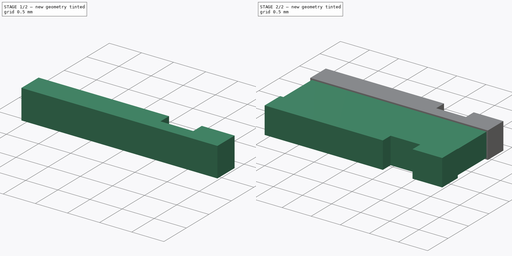
[diagram: build sequence overview — one tinted view per stage of 2, left to right]
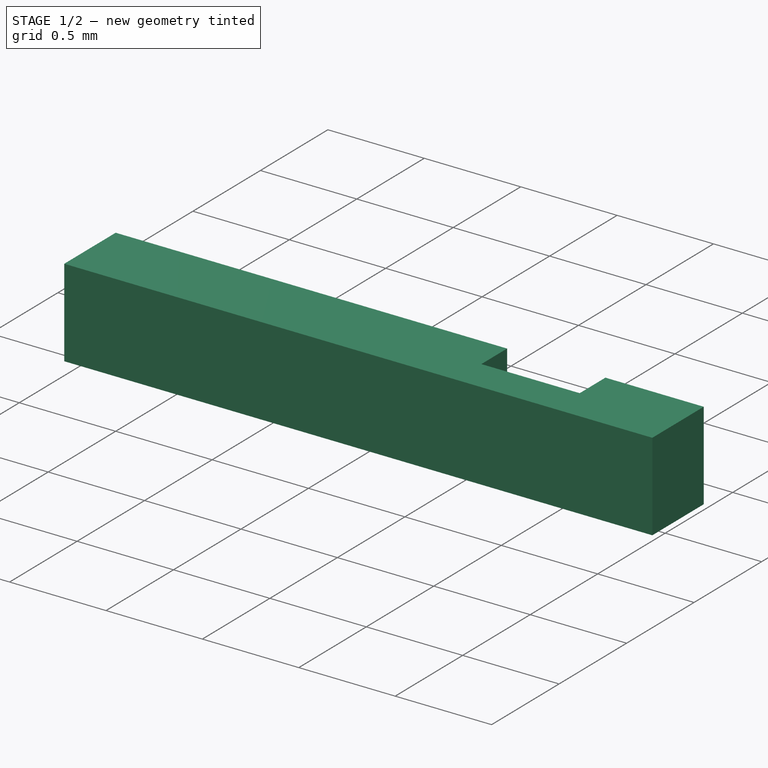
[diagram: stage 1 of 2 — iso view after this stage's code; geometry added in this stage tinted green]
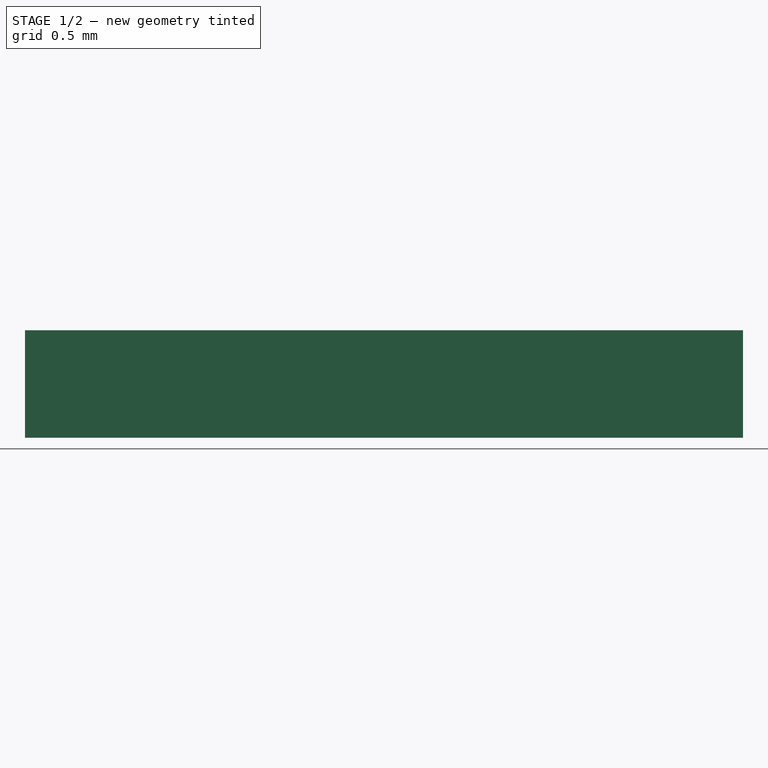
[diagram: stage 1 of 2 — front view after this stage's code; geometry added in this stage tinted green]
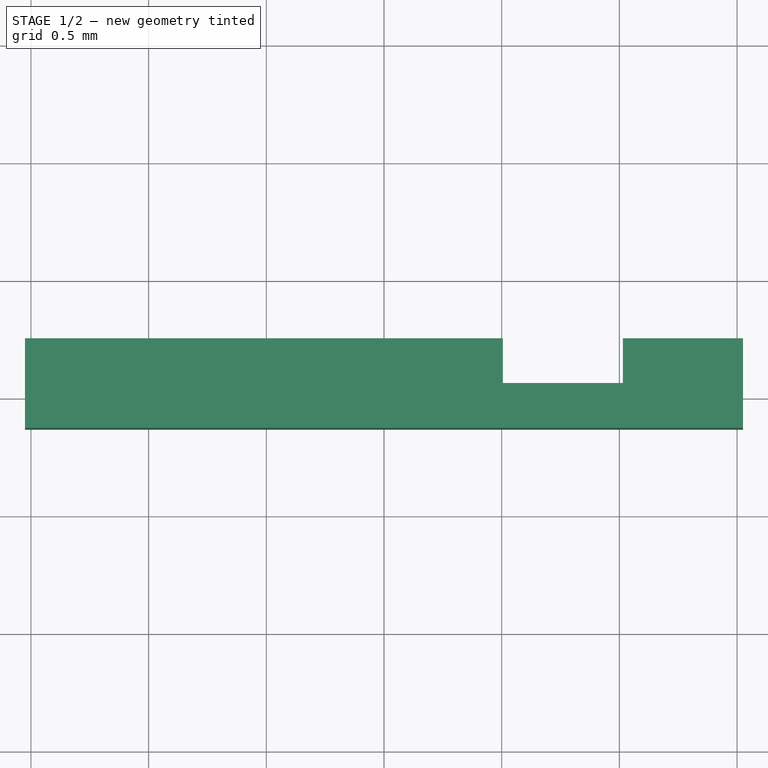
[diagram: stage 1 of 2 — top view after this stage's code; geometry added in this stage tinted green]
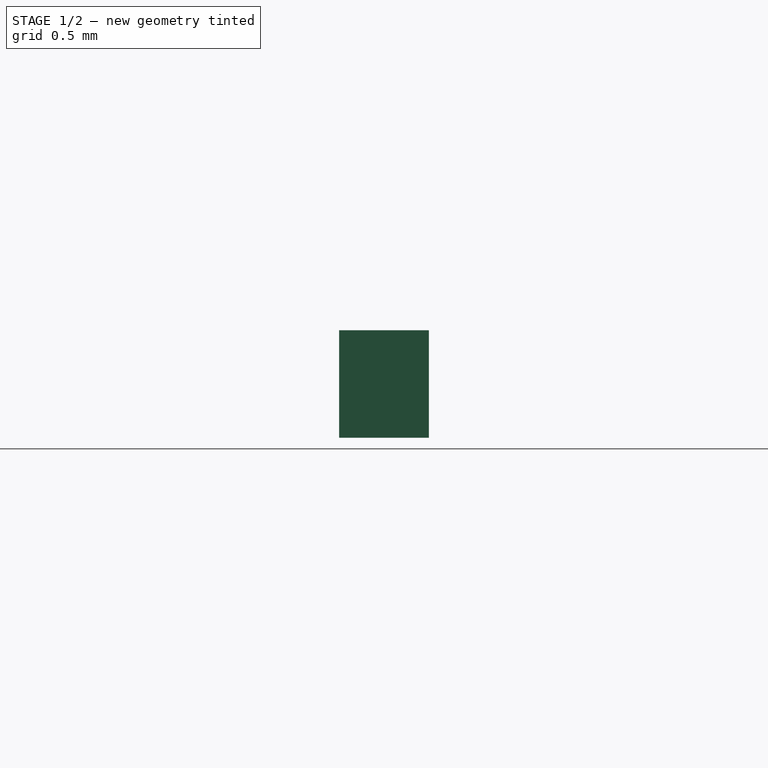
[diagram: stage 1 of 2 — right view after this stage's code; geometry added in this stage tinted green]
FCSTD DOCUMENT  (FreeCAD 0.15R4671 (Git))
Label: R_Shunt_Vishay_WSKW0612
License: All rights reserved
LicenseURL: http://en.wikipedia.org/wiki/All_rights_reserved
objects: Sketcher::SketchObject×2, PartDesign::Pad×2, Part::Mirroring×1, Part::MultiFuse×1
note: 8 computed .brp shape members not serialized (recipe doc carries the construction recipe); baked Part::Feature solids carry a one-line shape summary decoded from their .brp

FEATURE [Sketcher::SketchObject] Sketch001
  sketch-geometry (8):
    g0: LineSegment StartX=-1.525 StartY=-0.369 StartZ=0 EndX=1.525 EndY=-0.369 EndZ=0
    g1: LineSegment StartX=1.525 StartY=-0.369 StartZ=0 EndX=1.525 EndY=-0.75 EndZ=0
    g2: LineSegment StartX=1.525 StartY=-0.75 StartZ=0 EndX=1.015 EndY=-0.75 EndZ=0
    g3: LineSegment StartX=1.015 StartY=-0.75 StartZ=0 EndX=1.015 EndY=-0.5595 EndZ=0
    g4: LineSegment StartX=1.015 StartY=-0.5595 StartZ=0 EndX=0.505 EndY=-0.5595 EndZ=0
    g5: LineSegment StartX=0.505 StartY=-0.5595 StartZ=0 EndX=0.505 EndY=-0.75 EndZ=0
    g6: LineSegment StartX=0.505 StartY=-0.75 StartZ=0 EndX=-1.525 EndY=-0.75 EndZ=0
    g7: LineSegment StartX=-1.525 StartY=-0.75 StartZ=0 EndX=-1.525 EndY=-0.369 EndZ=0
  constraints (24):
    c: Horizontal(g0)
    c: Coincident(g0,g1)
    c: Vertical(g1)
    c: Coincident(g1,g2)
    c: Horizontal(g2)
    c: Coincident(g2,g3)
    c: Vertical(g3)
    c: Coincident(g3,g4)
    c: Horizontal(g4)
    c: Coincident(g4,g5)
    c: Coincident(g5,g6)
    c: Horizontal(g6)
    c: Coincident(g6,g7)
    c: Coincident(g7,g0)
    c: Vertical(g7)
    c: Distance(g0) = 3.05
    c: DistanceX(g-2,g0) = -1.525
    c: DistanceY(g-1,g0) = -0.369
    c: Distance(g7) = 0.381
    c: Equal(g1,g7)
    c: Distance(g4) = 0.51
    c: Perpendicular(g4,g5)
    c: Distance(g2) = 0.51
    c: Distance(g5) = 0.1905
FEATURE [PartDesign::Pad] Pad001
  Length = 0.457
  Length2 = 100
  Sketch = -> Sketch001
  Type = 0
FEATURE [Part::Mirroring] Part__Mirroring  label="Pad001 (Mirror #1)"
  Base = (0,0,0)
  Normal = (0,1,0)
  Source = -> Pad001
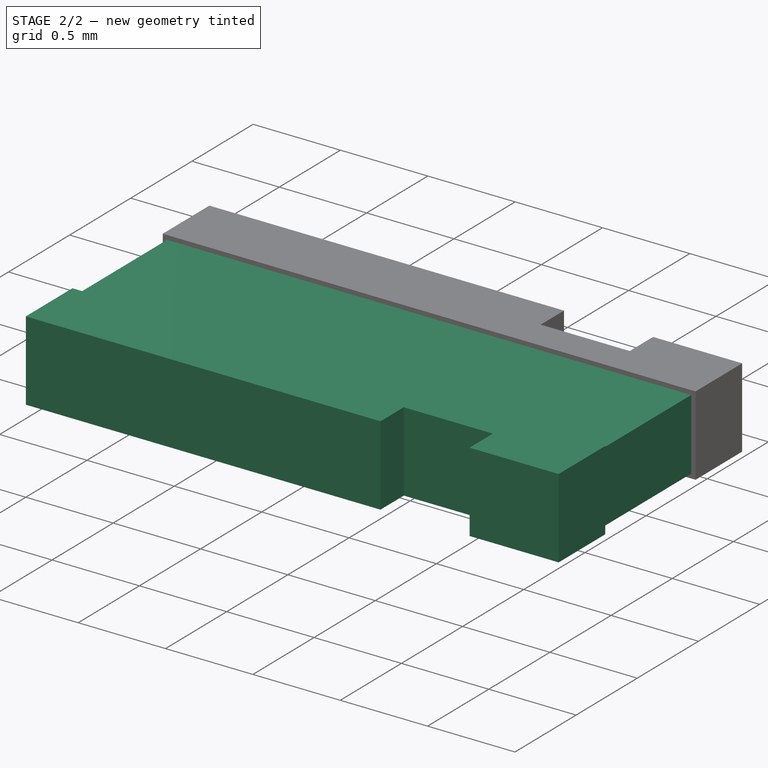
[diagram: stage 2 of 2 — iso view after this stage's code; geometry added in this stage tinted green]
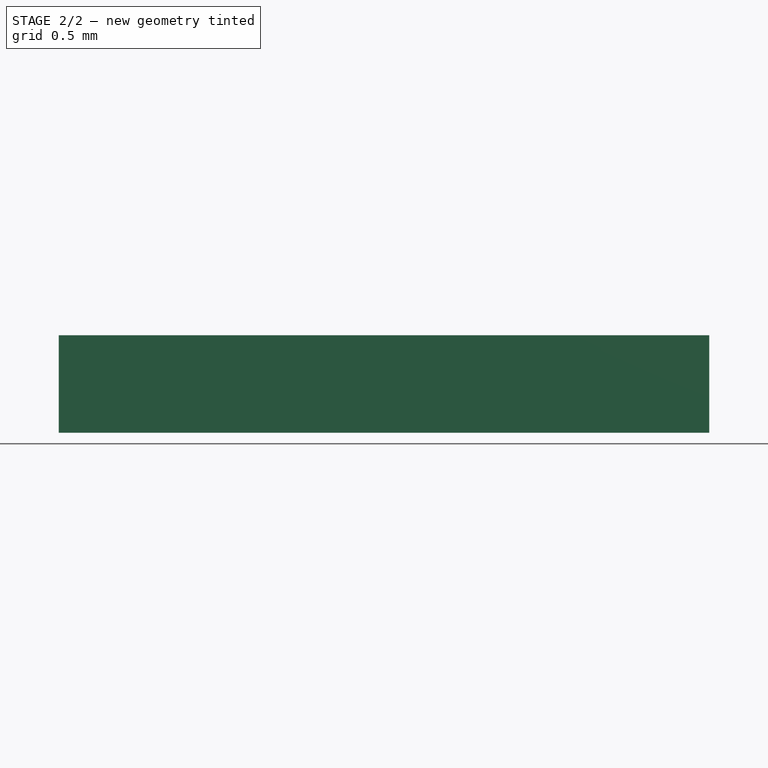
[diagram: stage 2 of 2 — front view after this stage's code; geometry added in this stage tinted green]
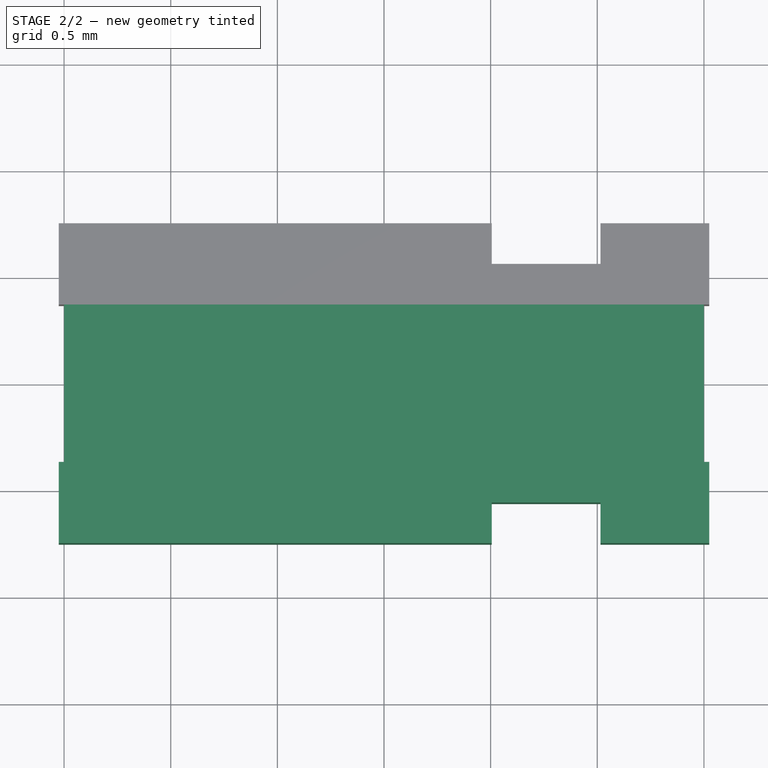
[diagram: stage 2 of 2 — top view after this stage's code; geometry added in this stage tinted green]
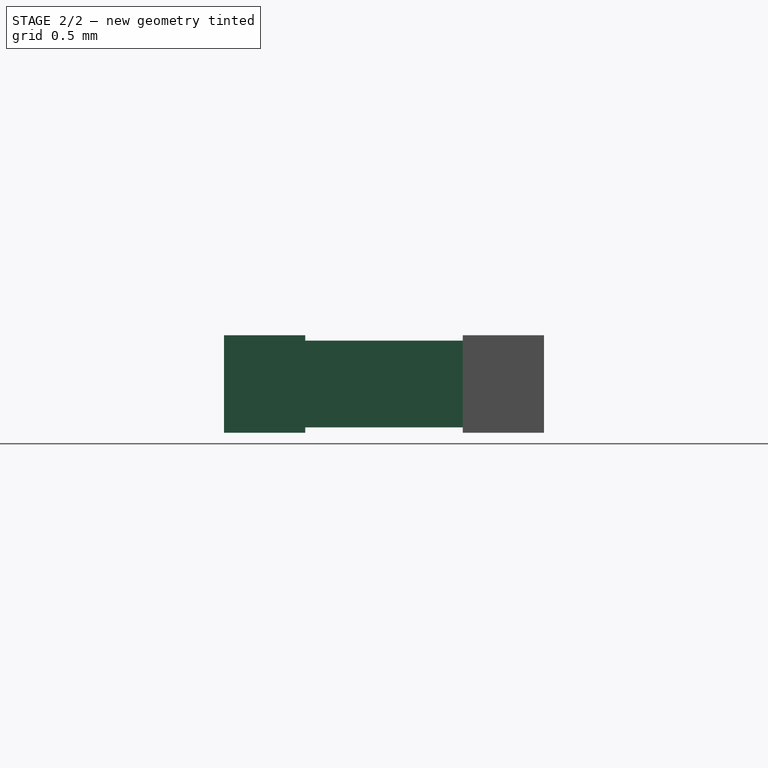
[diagram: stage 2 of 2 — right view after this stage's code; geometry added in this stage tinted green]
FEATURE [Sketcher::SketchObject] Sketch
  Placement = pos=(0,0,0.025) rot=(0,0,1;0rad)
  sketch-geometry (4):
    g0: LineSegment StartX=-1.5 StartY=0.369 StartZ=0 EndX=1.5 EndY=0.369 EndZ=0
    g1: LineSegment StartX=1.5 StartY=0.369 StartZ=0 EndX=1.5 EndY=-0.369 EndZ=0
    g2: LineSegment StartX=1.5 StartY=-0.369 StartZ=0 EndX=-1.5 EndY=-0.369 EndZ=0
    g3: LineSegment StartX=-1.5 StartY=-0.369 StartZ=0 EndX=-1.5 EndY=0.369 EndZ=0
  constraints (12):
    c: Coincident(g0,g1)
    c: Coincident(g1,g2)
    c: Coincident(g2,g3)
    c: Coincident(g3,g0)
    c: Horizontal(g0)
    c: Horizontal(g2)
    c: Vertical(g1)
    c: Vertical(g3)
    c: Distance(g3) = 0.738
    c: DistanceY(g-1,g2) = -0.369
    c: Distance(g0,g0) = 3
    c: DistanceX(g-2,g0) = -1.5
FEATURE [PartDesign::Pad] Pad  label="Body"
  Length = 0.407
  Length2 = 100
  Placement = pos=(0,0,0.025) rot=(0,0,1;0rad)
  Sketch = -> Sketch
  Type = 0
FEATURE [Part::MultiFuse] Fusion  label="R_Shunt_Vishay_WSKW0612"
  Shapes = -> [Pad001,Part__Mirroring,Pad]
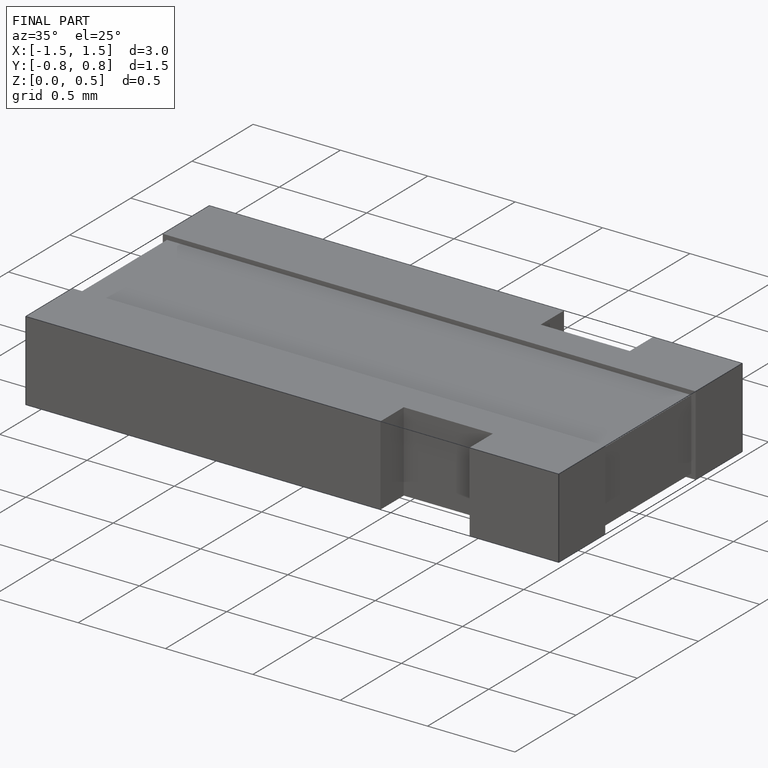
[diagram: finished part — iso view with bounding-box wireframe]
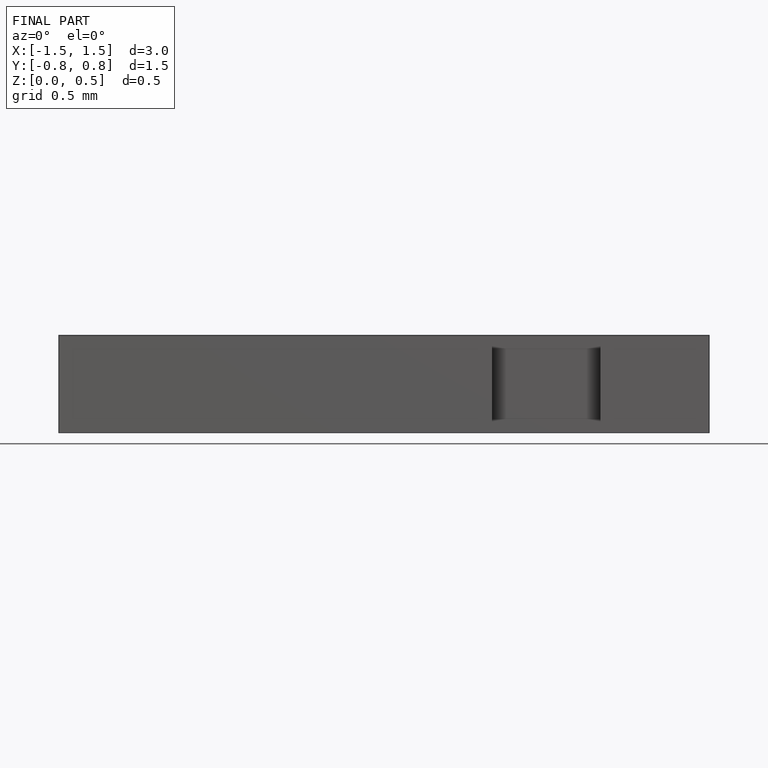
[diagram: finished part — front view with bounding-box wireframe]
